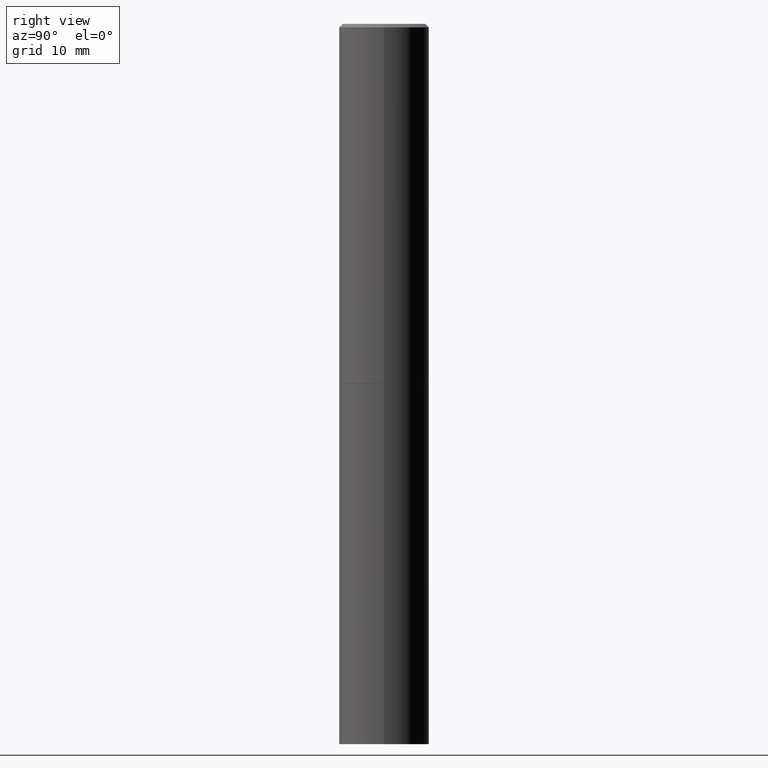
[diagram: clean part render]
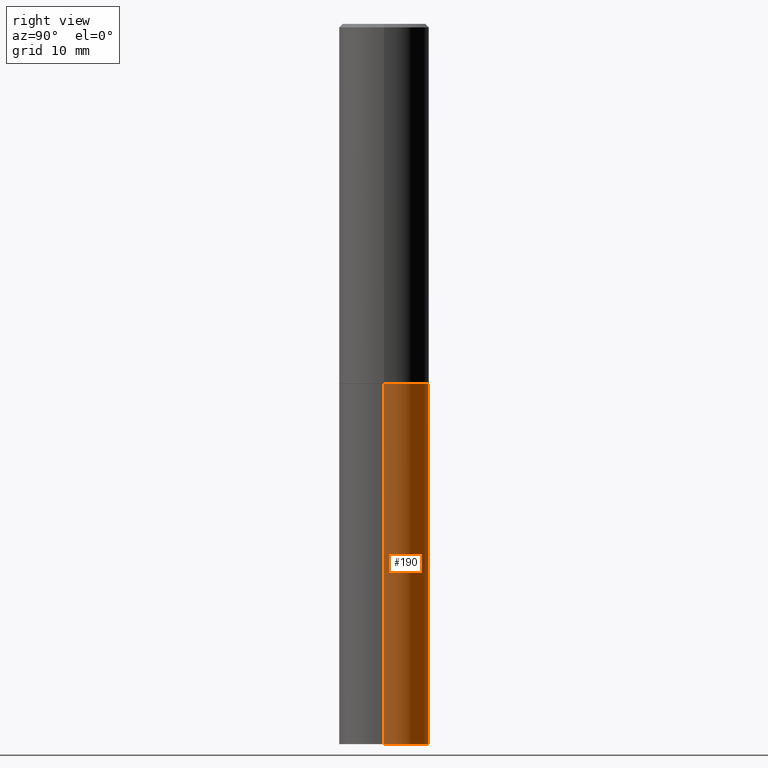
[diagram: same view with one face highlighted and labeled with its STEP entity id]
A machine part, right view. The second image highlights one B-rep face of the part: STEP entity #190.
In plain terms, the highlighted cylindrical surface (partial cylindrical patch) has radius 6.35 mm, axis along (-0, 0, 1).
Its self-contained STEP definition (entity closure, byte-faithful):
#2 = DIRECTION ( 'NONE',  ( 1.000000000000000000, -6.982962677686266711E-15, 0.000000000000000000 ) ) ;
#6 = LINE ( 'NONE', #164, #232 ) ;
#18 = ORIENTED_EDGE ( 'NONE', *, *, #258, .T. ) ;
#20 = ORIENTED_EDGE ( 'NONE', *, *, #364, .F. ) ;
#38 = CARTESIAN_POINT ( 'NONE',  ( 0.2500000000000000000, -1.745740669421566678E-15, 1.219044193948983948E-29 ) ) ;
#47 = CARTESIAN_POINT ( 'NONE',  ( 0.2500000000000000000, -1.571166602479415059E-14, -4.000000000000000000 ) ) ;
#67 = CIRCLE ( 'NONE', #312, 0.2500000000000000000 ) ;
#70 = ORIENTED_EDGE ( 'NONE', *, *, #191, .T. ) ;
#80 = DIRECTION ( 'NONE',  ( 1.000000000000000000, -6.982962677686270655E-15, 0.000000000000000000 ) ) ;
#82 = CIRCLE ( 'NONE', #298, 0.2500000000000000000 ) ;
#90 = CARTESIAN_POINT ( 'NONE',  ( -0.2500000000000000000, -8.698087177129185889E-15, -4.000000000000000000 ) ) ;
#105 = DIRECTION ( 'NONE',  ( -2.445468806185136597E-29, 3.491481338843145583E-15, 1.000000000000000000 ) ) ;
#108 = CARTESIAN_POINT ( 'NONE',  ( 4.890937612370273194E-29, -6.982962677686291165E-15, -2.000000000000000000 ) ) ;
#109 = CARTESIAN_POINT ( 'NONE',  ( 0.2500000000000000000, -8.728703347107857054E-15, -2.000000000000000000 ) ) ;
#129 = VERTEX_POINT ( 'NONE', #90 ) ;
#135 = CYLINDRICAL_SURFACE ( 'NONE', #212, 0.2500000000000000000 ) ;
#164 = CARTESIAN_POINT ( 'NONE',  ( -0.2500000000000000000, 1.776356839400250465E-15, -1.229733772563726445E-29 ) ) ;
#176 = DIRECTION ( 'NONE',  ( -2.445468806185136877E-29, 3.491481338843145188E-15, 1.000000000000000000 ) ) ;
#190 = ADVANCED_FACE ( 'NONE', ( #314 ), #135, .T. ) ;
#191 = EDGE_CURVE ( 'NONE', #303, #129, #67, .T. ) ;
#209 = LINE ( 'NONE', #38, #320 ) ;
#211 = EDGE_LOOP ( 'NONE', ( #70, #18, #333, #20 ) ) ;
#212 = AXIS2_PLACEMENT_3D ( 'NONE', #220, #105, #340 ) ;
#220 = CARTESIAN_POINT ( 'NONE',  ( 0.000000000000000000, 0.000000000000000000, 0.000000000000000000 ) ) ;
#223 = DIRECTION ( 'NONE',  ( -2.445468806185136597E-29, 3.491481338843145583E-15, 1.000000000000000000 ) ) ;
#232 = VECTOR ( 'NONE', #176, 39.37007874015748143 ) ;
#258 = EDGE_CURVE ( 'NONE', #129, #268, #6, .T. ) ;
#259 = CARTESIAN_POINT ( 'NONE',  ( 9.781875224740546387E-29, -1.396592535537258233E-14, -4.000000000000000000 ) ) ;
#265 = EDGE_CURVE ( 'NONE', #270, #268, #82, .T. ) ;
#267 = DIRECTION ( 'NONE',  ( -2.445468806185136877E-29, 3.491481338843145188E-15, 1.000000000000000000 ) ) ;
#268 = VERTEX_POINT ( 'NONE', #316 ) ;
#270 = VERTEX_POINT ( 'NONE', #109 ) ;
#278 = DIRECTION ( 'NONE',  ( -2.445468806185136597E-29, 3.491481338843145583E-15, 1.000000000000000000 ) ) ;
#298 = AXIS2_PLACEMENT_3D ( 'NONE', #108, #278, #2 ) ;
#303 = VERTEX_POINT ( 'NONE', #47 ) ;
#312 = AXIS2_PLACEMENT_3D ( 'NONE', #259, #223, #80 ) ;
#314 = FACE_OUTER_BOUND ( 'NONE', #211, .T. ) ;
#316 = CARTESIAN_POINT ( 'NONE',  ( -0.2500000000000000000, -8.698087177129185889E-15, -2.000000000000000000 ) ) ;
#320 = VECTOR ( 'NONE', #267, 39.37007874015748143 ) ;
#333 = ORIENTED_EDGE ( 'NONE', *, *, #265, .F. ) ;
#340 = DIRECTION ( 'NONE',  ( 1.000000000000000000, -6.982962677686266711E-15, 4.876176775795935793E-29 ) ) ;
#364 = EDGE_CURVE ( 'NONE', #303, #270, #209, .T. ) ;